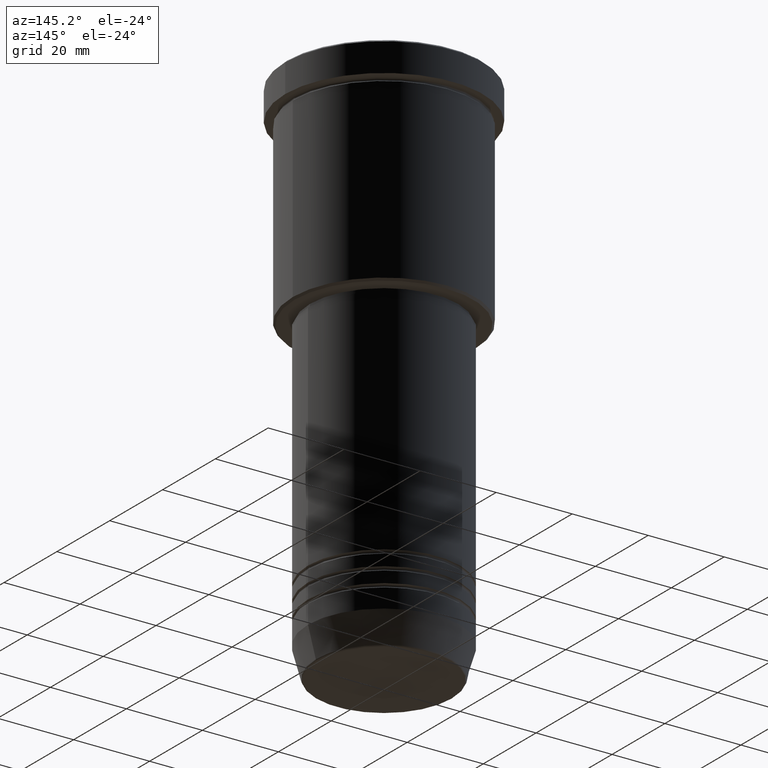
[diagram: clean part render]
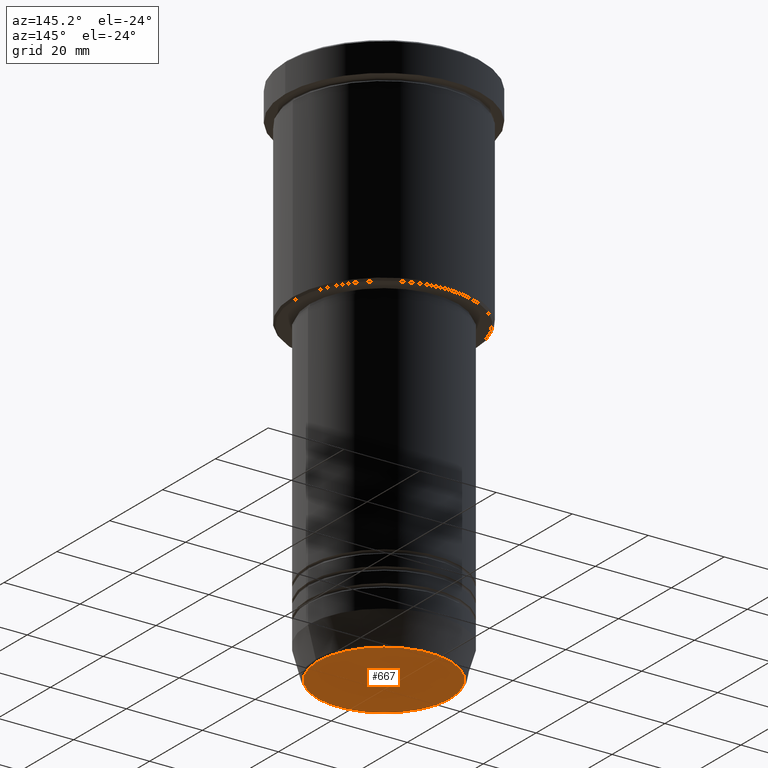
[diagram: same view with one face highlighted and labeled with its STEP entity id]
A machine part, auxiliary view. The second image highlights one B-rep face of the part: STEP entity #667.
In plain terms, the highlighted planar face has unit normal (0, -0, 1).
Its self-contained STEP definition (entity closure, byte-faithful):
#70 = CARTESIAN_POINT ( 'NONE',  ( 0.000000000000000000, 0.000000000000000000, -140.0000000000000000 ) ) ;
#89 = FACE_OUTER_BOUND ( 'NONE', #1130, .T. ) ;
#107 = AXIS2_PLACEMENT_3D ( 'NONE', #1182, #742, #1100 ) ;
#150 = CIRCLE ( 'NONE', #614, 17.47274296656153680 ) ;
#159 = VERTEX_POINT ( 'NONE', #413 ) ;
#163 = AXIS2_PLACEMENT_3D ( 'NONE', #752, #1025, #1012 ) ;
#251 = VERTEX_POINT ( 'NONE', #629 ) ;
#260 = ORIENTED_EDGE ( 'NONE', *, *, #1183, .T. ) ;
#352 = EDGE_CURVE ( 'NONE', #159, #251, #591, .T. ) ;
#413 = CARTESIAN_POINT ( 'NONE',  ( 17.47274296656153680, 0.000000000000000000, -140.0000000000000000 ) ) ;
#591 = CIRCLE ( 'NONE', #163, 17.47274296656153680 ) ;
#604 = DIRECTION ( 'NONE',  ( 1.000000000000000000, 0.000000000000000000, 0.000000000000000000 ) ) ;
#614 = AXIS2_PLACEMENT_3D ( 'NONE', #70, #1141, #604 ) ;
#629 = CARTESIAN_POINT ( 'NONE',  ( -17.47274296656153680, 2.169366823916867714E-15, -140.0000000000000000 ) ) ;
#667 = ADVANCED_FACE ( 'NONE', ( #89 ), #855, .F. ) ;
#672 = ORIENTED_EDGE ( 'NONE', *, *, #352, .T. ) ;
#742 = DIRECTION ( 'NONE',  ( 0.000000000000000000, -0.000000000000000000, 1.000000000000000000 ) ) ;
#752 = CARTESIAN_POINT ( 'NONE',  ( 0.000000000000000000, 0.000000000000000000, -140.0000000000000000 ) ) ;
#855 = PLANE ( 'NONE',  #107 ) ;
#1012 = DIRECTION ( 'NONE',  ( 1.000000000000000000, 0.000000000000000000, 0.000000000000000000 ) ) ;
#1025 = DIRECTION ( 'NONE',  ( 0.000000000000000000, 0.000000000000000000, -1.000000000000000000 ) ) ;
#1100 = DIRECTION ( 'NONE',  ( 1.000000000000000000, 0.000000000000000000, 0.000000000000000000 ) ) ;
#1130 = EDGE_LOOP ( 'NONE', ( #672, #260 ) ) ;
#1141 = DIRECTION ( 'NONE',  ( 0.000000000000000000, 0.000000000000000000, -1.000000000000000000 ) ) ;
#1182 = CARTESIAN_POINT ( 'NONE',  ( 0.000000000000000000, 0.000000000000000000, -140.0000000000000000 ) ) ;
#1183 = EDGE_CURVE ( 'NONE', #251, #159, #150, .T. ) ;